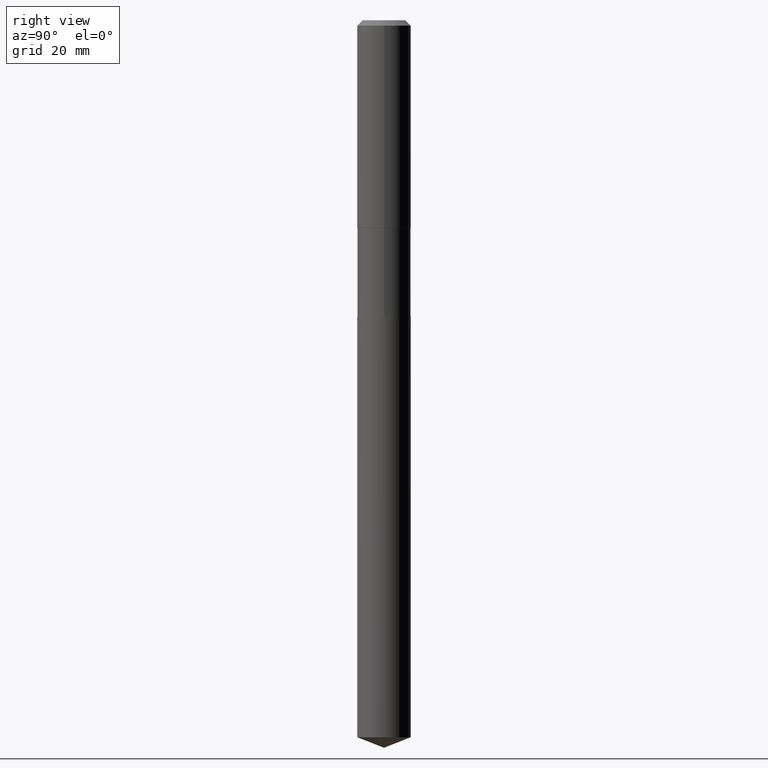
[diagram: clean part render]
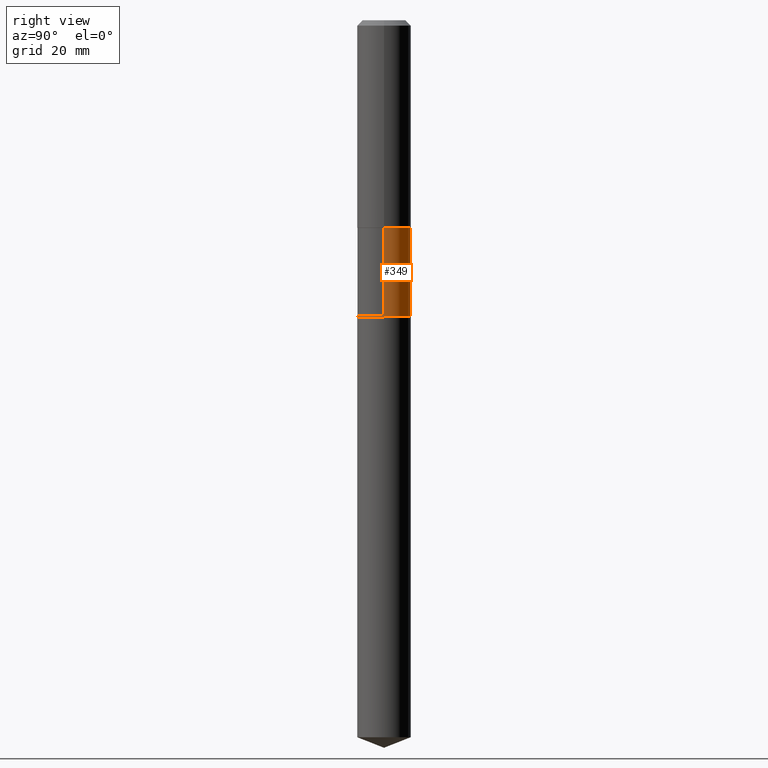
[diagram: same view with one face highlighted and labeled with its STEP entity id]
A machine part, right view. The second image highlights one B-rep face of the part: STEP entity #349.
In plain terms, the highlighted cylindrical surface (edge-blend (fillet) strip) has radius 5.9538 mm, axis along (-0, 0, 1).
Its self-contained STEP definition (entity closure, byte-faithful):
#20 = EDGE_CURVE ( 'NONE', #326, #436, #399, .T. ) ;
#73 = EDGE_CURVE ( 'NONE', #246, #326, #90, .T. ) ;
#88 = DIRECTION ( 'NONE',  ( 1.000000000000000000, -6.982962677686269077E-15, 0.000000000000000000 ) ) ;
#90 = LINE ( 'NONE', #473, #223 ) ;
#103 = CARTESIAN_POINT ( 'NONE',  ( 0.000000000000000000, 0.000000000000000000, 0.000000000000000000 ) ) ;
#104 = VECTOR ( 'NONE', #231, 39.37007874015748143 ) ;
#105 = DIRECTION ( 'NONE',  ( -2.445468806185136597E-29, 3.491481338843145583E-15, 1.000000000000000000 ) ) ;
#106 = CIRCLE ( 'NONE', #321, 0.2344000000000000250 ) ;
#120 = CARTESIAN_POINT ( 'NONE',  ( 4.449285945973238276E-29, -6.352401147891219622E-15, -1.819400000000000350 ) ) ;
#129 = DIRECTION ( 'NONE',  ( -2.445468806185136597E-29, 3.491481338843145583E-15, 1.000000000000000000 ) ) ;
#132 = AXIS2_PLACEMENT_3D ( 'NONE', #120, #172, #322 ) ;
#156 = CARTESIAN_POINT ( 'NONE',  ( 0.2344000000000000250, -1.070732582183027361E-14, -2.597900000000000542 ) ) ;
#162 = ORIENTED_EDGE ( 'NONE', *, *, #73, .F. ) ;
#172 = DIRECTION ( 'NONE',  ( -2.445468806185136597E-29, 3.491481338843145583E-15, 1.000000000000000000 ) ) ;
#178 = VERTEX_POINT ( 'NONE', #327 ) ;
#197 = CARTESIAN_POINT ( 'NONE',  ( -0.2343999999999999695, 1.665512172621674619E-15, -1.152998385155749684E-29 ) ) ;
#223 = VECTOR ( 'NONE', #365, 39.37007874015748143 ) ;
#229 = LINE ( 'NONE', #197, #104 ) ;
#231 = DIRECTION ( 'NONE',  ( -2.445468806185136877E-29, 3.491481338843145188E-15, 1.000000000000000000 ) ) ;
#236 = EDGE_CURVE ( 'NONE', #178, #436, #229, .T. ) ;
#246 = VERTEX_POINT ( 'NONE', #156 ) ;
#305 = DIRECTION ( 'NONE',  ( 1.000000000000000000, -6.982962677686266711E-15, 4.876176775795935793E-29 ) ) ;
#321 = AXIS2_PLACEMENT_3D ( 'NONE', #333, #129, #88 ) ;
#322 = DIRECTION ( 'NONE',  ( 1.000000000000000000, -6.982962677686265133E-15, 0.000000000000000000 ) ) ;
#326 = VERTEX_POINT ( 'NONE', #419 ) ;
#327 = CARTESIAN_POINT ( 'NONE',  ( -0.2344000000000000250, -6.045948086414241343E-15, -2.597900000000000542 ) ) ;
#333 = CARTESIAN_POINT ( 'NONE',  ( 6.353083411588368076E-29, -9.070519370180611907E-15, -2.597900000000000542 ) ) ;
#339 = ORIENTED_EDGE ( 'NONE', *, *, #20, .F. ) ;
#348 = CYLINDRICAL_SURFACE ( 'NONE', #409, 0.2343999999999999695 ) ;
#349 = ADVANCED_FACE ( 'NONE', ( #415 ), #348, .T. ) ;
#364 = EDGE_LOOP ( 'NONE', ( #463, #431, #339, #162 ) ) ;
#365 = DIRECTION ( 'NONE',  ( -2.445468806185136877E-29, 3.491481338843145188E-15, 1.000000000000000000 ) ) ;
#394 = CARTESIAN_POINT ( 'NONE',  ( -0.2343999999999998862, -6.045948086414241343E-15, -1.819400000000000350 ) ) ;
#399 = CIRCLE ( 'NONE', #132, 0.2343999999999998862 ) ;
#409 = AXIS2_PLACEMENT_3D ( 'NONE', #103, #105, #305 ) ;
#415 = FACE_OUTER_BOUND ( 'NONE', #364, .T. ) ;
#419 = CARTESIAN_POINT ( 'NONE',  ( 0.2343999999999998862, -7.989207599540879743E-15, -1.819400000000000350 ) ) ;
#430 = EDGE_CURVE ( 'NONE', #246, #178, #106, .T. ) ;
#431 = ORIENTED_EDGE ( 'NONE', *, *, #236, .T. ) ;
#436 = VERTEX_POINT ( 'NONE', #394 ) ;
#463 = ORIENTED_EDGE ( 'NONE', *, *, #430, .T. ) ;
#473 = CARTESIAN_POINT ( 'NONE',  ( 0.2343999999999999695, -1.636806451649660713E-15, 1.142975836246567155E-29 ) ) ;